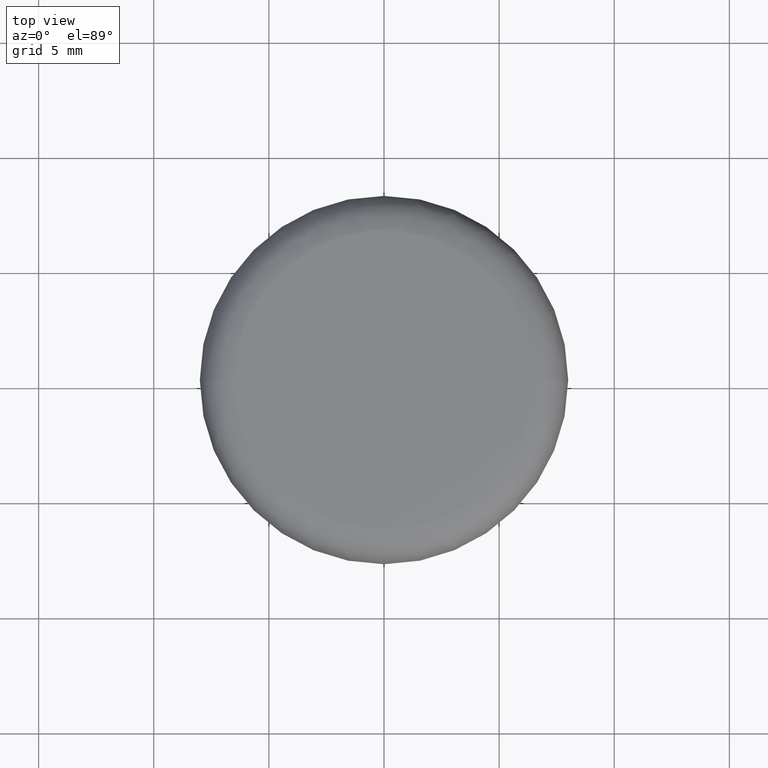
[diagram: clean part render]
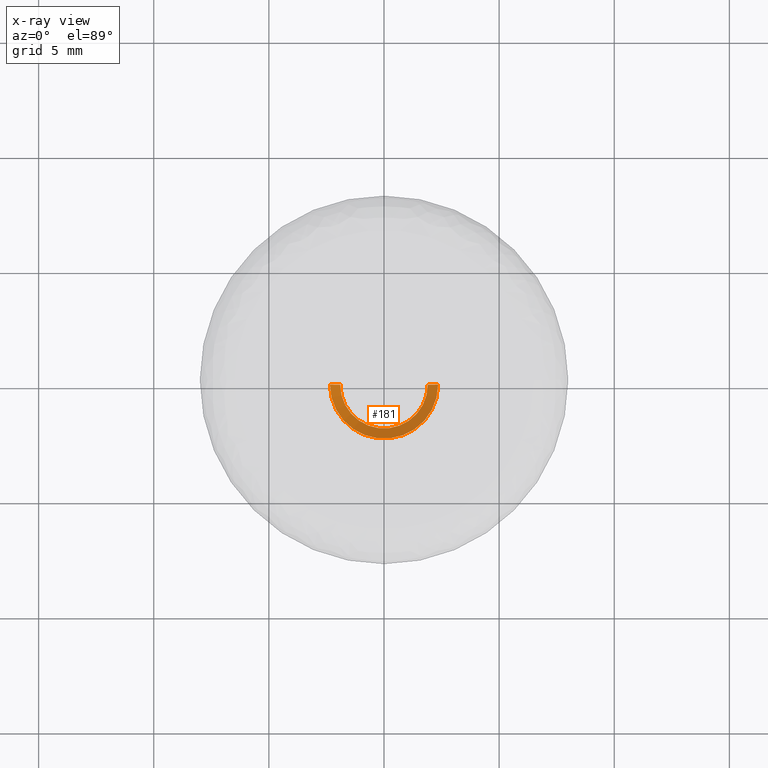
[diagram: x-ray — body ghosted, one internal face saturated and labeled with its STEP entity id]
A machine part, top view, then the same camera in x-ray: the body is ghosted and one INTERNAL B-rep face — a face not visible from any outside direction — is saturated and labeled: STEP entity #181.
In plain terms, the highlighted face is a freeform B-spline surface patch.
Its self-contained STEP definition (entity closure, byte-faithful):
#181=ADVANCED_FACE('',(#889),#888,.T.);
#888=( BOUNDED_SURFACE() B_SPLINE_SURFACE( 2,1,((#1508,#1509),(#1510,#1511),(#1512,#1513),(#1514,#1515),(#1516,#1517)), .UNSPECIFIED.,.F.,.F.,.F.) B_SPLINE_SURFACE_WITH_KNOTS((3,2,3),(2,2),(0.00000000000E+00,5.00000000000E-01,1.00000000000E+00),(0.00000000000E+00,1.00000000000E+00), .UNSPECIFIED. ) GEOMETRIC_REPRESENTATION_ITEM() RATIONAL_B_SPLINE_SURFACE(((1.00000000000E+00,1.00000000000E+00),(7.07106781187E-01,7.07106781187E-01),(1.00000000000E+00,1.00000000000E+00),(7.07106781187E-01,7.07106781187E-01),(1.00000000000E+00,1.00000000000E+00))) REPRESENTATION_ITEM('') SURFACE() );
#889=FACE_OUTER_BOUND('',#1518,.T.);
#1508=CARTESIAN_POINT('',(-1.90000000000E+00,-4.65365783676E-16,-1.32000000000E+01));
#1509=CARTESIAN_POINT('',(-2.35000000000E+00,-5.75583995599E-16,-1.27000000000E+01));
#1510=CARTESIAN_POINT('',(-1.90000000000E+00,-1.90000000000E+00,-1.32000000000E+01));
#1511=CARTESIAN_POINT('',(-2.35000000000E+00,-2.35000000000E+00,-1.27000000000E+01));
#1512=CARTESIAN_POINT('',(3.49024337757E-16,-1.90000000000E+00,-1.32000000000E+01));
#1513=CARTESIAN_POINT('',(4.31687996699E-16,-2.35000000000E+00,-1.27000000000E+01));
#1514=CARTESIAN_POINT('',(1.90000000000E+00,-1.90000000000E+00,-1.32000000000E+01));
#1515=CARTESIAN_POINT('',(2.35000000000E+00,-2.35000000000E+00,-1.27000000000E+01));
#1516=CARTESIAN_POINT('',(1.90000000000E+00,2.32682891838E-16,-1.32000000000E+01));
#1517=CARTESIAN_POINT('',(2.35000000000E+00,2.87791997800E-16,-1.27000000000E+01));
#1518=EDGE_LOOP('',(#2004,#2005,#2006,#2007));
#2004=ORIENTED_EDGE('',*,*,#2230,.T.);
#2005=ORIENTED_EDGE('',*,*,#2231,.F.);
#2006=ORIENTED_EDGE('',*,*,#2229,.F.);
#2007=ORIENTED_EDGE('',*,*,#2232,.T.);
#2229=EDGE_CURVE('',#3409,#3408,#3428,.T.);
#2230=EDGE_CURVE('',#3434,#3435,#3436,.T.);
#2231=EDGE_CURVE('',#3408,#3435,#3442,.T.);
#2232=EDGE_CURVE('',#3409,#3434,#3448,.T.);
#3408=VERTEX_POINT('',#4318);
#3409=VERTEX_POINT('',#4319);
#3428=CIRCLE('',#4331,1.90000000000E+00);
#3434=VERTEX_POINT('',#4332);
#3435=VERTEX_POINT('',#4333);
#3436=CIRCLE('',#4337,2.35000000000E+00);
#3442=(BOUNDED_CURVE() B_SPLINE_CURVE(1,(#4338,#4339),.UNSPECIFIED.,.F.,.F.) B_SPLINE_CURVE_WITH_KNOTS((2,2),(0.00000000000E+00,1.00000000000E+00),.UNSPECIFIED.) CURVE() GEOMETRIC_REPRESENTATION_ITEM() RATIONAL_B_SPLINE_CURVE((1.00000000000E+00,1.00000000000E+00)) REPRESENTATION_ITEM('') );
#3448=(BOUNDED_CURVE() B_SPLINE_CURVE(1,(#4340,#4341),.UNSPECIFIED.,.F.,.F.) B_SPLINE_CURVE_WITH_KNOTS((2,2),(0.00000000000E+00,1.00000000000E+00),.UNSPECIFIED.) CURVE() GEOMETRIC_REPRESENTATION_ITEM() RATIONAL_B_SPLINE_CURVE((7.50000000000E-01,7.50000000000E-01)) REPRESENTATION_ITEM('') );
#4318=CARTESIAN_POINT('',(-1.90000000000E+00,0.00000000000E+00,-1.32000000000E+01));
#4319=CARTESIAN_POINT('',(1.90000000000E+00,2.22044604925E-16,-1.32000000000E+01));
#4328=CARTESIAN_POINT('',(0.00000000000E+00,0.00000000000E+00,-1.32000000000E+01));
#4329=DIRECTION('',(-0.00000000000E+00,0.00000000000E+00,-1.00000000000E+00));
#4330=DIRECTION('',(-1.00000000000E+00,-1.22460635382E-16,0.00000000000E+00));
#4331=AXIS2_PLACEMENT_3D('',#4328,#4329,#4330);
#4332=CARTESIAN_POINT('',(2.35000000000E+00,0.00000000000E+00,-1.27000000000E+01));
#4333=CARTESIAN_POINT('',(-2.35000000000E+00,0.00000000000E+00,-1.27000000000E+01));
#4334=CARTESIAN_POINT('',(0.00000000000E+00,0.00000000000E+00,-1.27000000000E+01));
#4335=DIRECTION('',(-0.00000000000E+00,0.00000000000E+00,-1.00000000000E+00));
#4336=DIRECTION('',(-1.00000000000E+00,-1.22460635382E-16,0.00000000000E+00));
#4337=AXIS2_PLACEMENT_3D('',#4334,#4335,#4336);
#4338=CARTESIAN_POINT('',(-1.90000000000E+00,-4.65350414453E-16,-1.32000000000E+01));
#4339=CARTESIAN_POINT('',(-2.35000000000E+00,-5.75564986296E-16,-1.27000000000E+01));
#4340=CARTESIAN_POINT('',(1.90000000000E+00,4.44089209850E-16,-1.32000000000E+01));
#4341=CARTESIAN_POINT('',(2.35000000000E+00,7.40148683083E-16,-1.27000000000E+01));